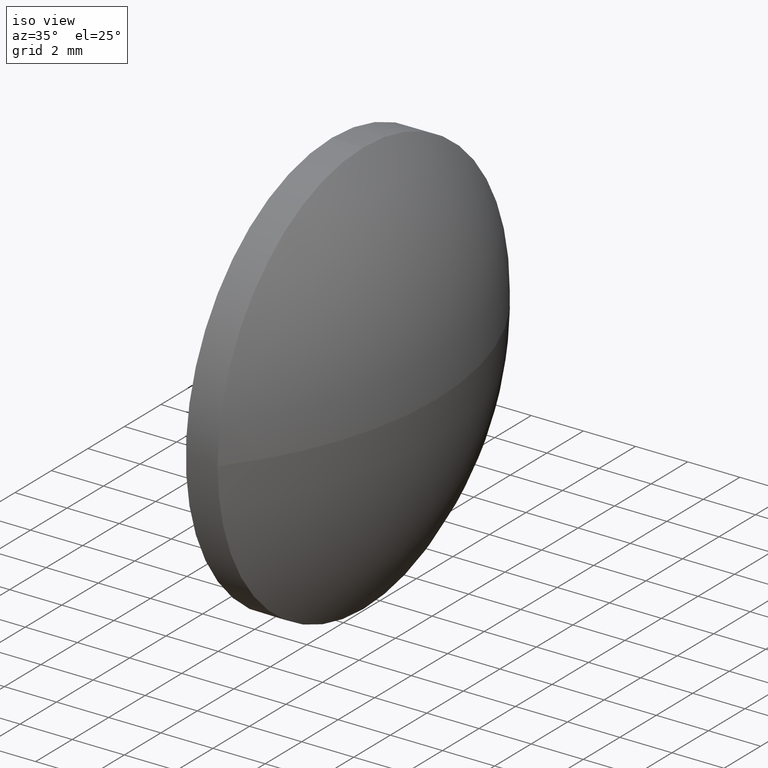
[diagram: clean part render]
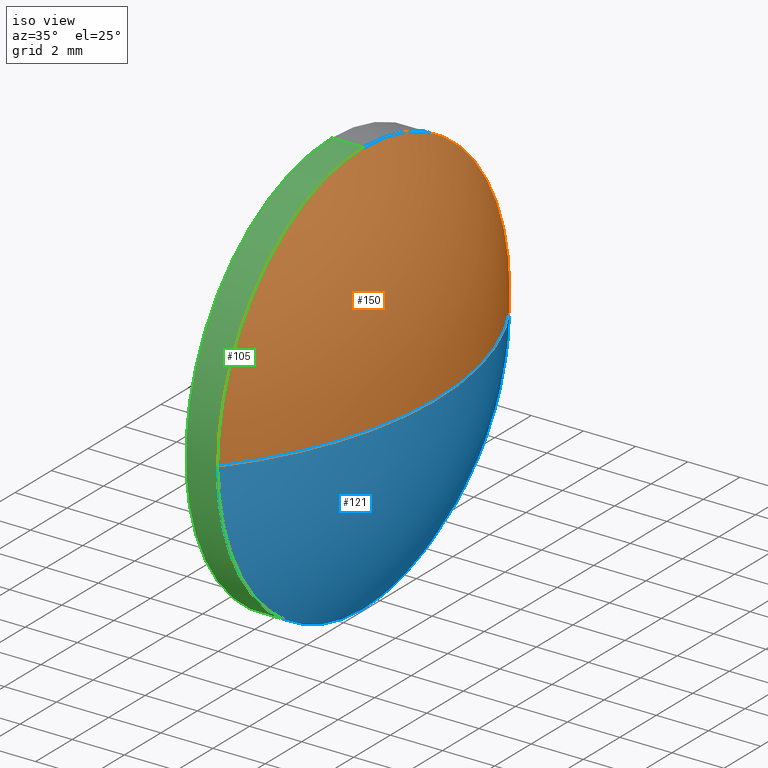
[diagram: same view with three faces highlighted in distinct colors, each labeled with its STEP entity id]
A machine part, iso view with three faces highlighted in distinct colors.
Their STEP definitions:

[orange] entity #150 — the highlighted spherical surface has radius 12.9008 mm.
#15 = CARTESIAN_POINT ( 'NONE',  ( 479.1329406845434800, -39.39311848752242900, 0.0000000000000000000 ) ) ;
#19 = SPHERICAL_SURFACE ( 'NONE', #51, 12.90079136690647800 ) ;
#22 = CIRCLE ( 'NONE', #27, 12.90079136690647800 ) ;
#23 = EDGE_CURVE ( 'NONE', #125, #62, #137, .T. ) ;
#24 = AXIS2_PLACEMENT_3D ( 'NONE', #66, #81, #181 ) ;
#27 = AXIS2_PLACEMENT_3D ( 'NONE', #112, #138, #45 ) ;
#30 = CARTESIAN_POINT ( 'NONE',  ( 476.3529406845434600, -31.39311848752240800, 0.0000000000000000000 ) ) ;
#40 = ORIENTED_EDGE ( 'NONE', *, *, #77, .F. ) ;
#45 = DIRECTION ( 'NONE',  ( 0.0000000000000000000, 1.000000000000000000, 1.224646799147353200E-016 ) ) ;
#47 = CARTESIAN_POINT ( 'NONE',  ( 476.3529406845434600, -39.39311848752240100, 0.0000000000000000000 ) ) ;
#51 = AXIS2_PLACEMENT_3D ( 'NONE', #82, #182, #98 ) ;
#53 = CIRCLE ( 'NONE', #151, 8.000000000000000000 ) ;
#62 = VERTEX_POINT ( 'NONE', #144 ) ;
#66 = CARTESIAN_POINT ( 'NONE',  ( 466.2321493176370400, -39.39311848752242900, 0.0000000000000000000 ) ) ;
#71 = VERTEX_POINT ( 'NONE', #30 ) ;
#73 = DIRECTION ( 'NONE',  ( 0.0000000000000000000, 0.0000000000000000000, 1.000000000000000000 ) ) ;
#77 = EDGE_CURVE ( 'NONE', #109, #125, #22, .T. ) ;
#81 = DIRECTION ( 'NONE',  ( -0.0000000000000000000, 0.0000000000000000000, 1.000000000000000000 ) ) ;
#82 = CARTESIAN_POINT ( 'NONE',  ( 466.2321493176370400, -39.39311848752242900, 0.0000000000000000000 ) ) ;
#90 = CIRCLE ( 'NONE', #24, 12.90079136690647100 ) ;
#97 = CARTESIAN_POINT ( 'NONE',  ( 476.3529406845434600, -39.39311848752240100, 0.0000000000000000000 ) ) ;
#98 = DIRECTION ( 'NONE',  ( 0.0000000000000000000, 1.000000000000000000, 0.0000000000000000000 ) ) ;
#107 = DIRECTION ( 'NONE',  ( 0.0000000000000000000, 0.0000000000000000000, 1.000000000000000000 ) ) ;
#109 = VERTEX_POINT ( 'NONE', #15 ) ;
#112 = CARTESIAN_POINT ( 'NONE',  ( 466.2321493176370400, -39.39311848752242900, 0.0000000000000000000 ) ) ;
#125 = VERTEX_POINT ( 'NONE', #140 ) ;
#126 = FACE_OUTER_BOUND ( 'NONE', #165, .T. ) ;
#134 = EDGE_CURVE ( 'NONE', #62, #71, #53, .T. ) ;
#137 = CIRCLE ( 'NONE', #160, 8.000000000000000000 ) ;
#138 = DIRECTION ( 'NONE',  ( 0.0000000000000000000, 1.224646799147353200E-016, -1.000000000000000000 ) ) ;
#140 = CARTESIAN_POINT ( 'NONE',  ( 476.3529406845434600, -47.39311848752242200, -9.797174393178821700E-016 ) ) ;
#144 = CARTESIAN_POINT ( 'NONE',  ( 476.3529406845434600, -39.39311848752240100, 8.000000000000000000 ) ) ;
#145 = DIRECTION ( 'NONE',  ( -1.000000000000000000, -0.0000000000000000000, -0.0000000000000000000 ) ) ;
#147 = ORIENTED_EDGE ( 'NONE', *, *, #23, .F. ) ;
#150 = ADVANCED_FACE ( 'NONE', ( #126 ), #19, .T. ) ;
#151 = AXIS2_PLACEMENT_3D ( 'NONE', #97, #172, #107 ) ;
#157 = ORIENTED_EDGE ( 'NONE', *, *, #177, .T. ) ;
#160 = AXIS2_PLACEMENT_3D ( 'NONE', #47, #145, #73 ) ;
#162 = ORIENTED_EDGE ( 'NONE', *, *, #134, .F. ) ;
#165 = EDGE_LOOP ( 'NONE', ( #40, #157, #162, #147 ) ) ;
#172 = DIRECTION ( 'NONE',  ( -1.000000000000000000, -0.0000000000000000000, -0.0000000000000000000 ) ) ;
#177 = EDGE_CURVE ( 'NONE', #109, #71, #90, .T. ) ;
#181 = DIRECTION ( 'NONE',  ( 1.000000000000000000, 0.0000000000000000000, 0.0000000000000000000 ) ) ;
#182 = DIRECTION ( 'NONE',  ( -0.0000000000000000000, 0.0000000000000000000, -1.000000000000000000 ) ) ;

[blue] entity #121 — the highlighted spherical surface has radius 12.9008 mm.
#6 = VERTEX_POINT ( 'NONE', #114 ) ;
#14 = ORIENTED_EDGE ( 'NONE', *, *, #183, .F. ) ;
#15 = CARTESIAN_POINT ( 'NONE',  ( 479.1329406845434800, -39.39311848752242900, 0.0000000000000000000 ) ) ;
#20 = EDGE_CURVE ( 'NONE', #6, #125, #148, .T. ) ;
#22 = CIRCLE ( 'NONE', #27, 12.90079136690647800 ) ;
#24 = AXIS2_PLACEMENT_3D ( 'NONE', #66, #81, #181 ) ;
#27 = AXIS2_PLACEMENT_3D ( 'NONE', #112, #138, #45 ) ;
#30 = CARTESIAN_POINT ( 'NONE',  ( 476.3529406845434600, -31.39311848752240800, 0.0000000000000000000 ) ) ;
#36 = DIRECTION ( 'NONE',  ( 0.0000000000000000000, 0.0000000000000000000, 1.000000000000000000 ) ) ;
#37 = DIRECTION ( 'NONE',  ( -1.000000000000000000, -0.0000000000000000000, -0.0000000000000000000 ) ) ;
#39 = CARTESIAN_POINT ( 'NONE',  ( 466.2321493176370400, -39.39311848752242900, 0.0000000000000000000 ) ) ;
#41 = SPHERICAL_SURFACE ( 'NONE', #128, 12.90079136690647800 ) ;
#45 = DIRECTION ( 'NONE',  ( 0.0000000000000000000, 1.000000000000000000, 1.224646799147353200E-016 ) ) ;
#58 = AXIS2_PLACEMENT_3D ( 'NONE', #115, #100, #175 ) ;
#66 = CARTESIAN_POINT ( 'NONE',  ( 466.2321493176370400, -39.39311848752242900, 0.0000000000000000000 ) ) ;
#71 = VERTEX_POINT ( 'NONE', #30 ) ;
#77 = EDGE_CURVE ( 'NONE', #109, #125, #22, .T. ) ;
#81 = DIRECTION ( 'NONE',  ( -0.0000000000000000000, 0.0000000000000000000, 1.000000000000000000 ) ) ;
#83 = ORIENTED_EDGE ( 'NONE', *, *, #177, .F. ) ;
#86 = DIRECTION ( 'NONE',  ( -0.0000000000000000000, 0.0000000000000000000, -1.000000000000000000 ) ) ;
#90 = CIRCLE ( 'NONE', #24, 12.90079136690647100 ) ;
#100 = DIRECTION ( 'NONE',  ( -1.000000000000000000, -0.0000000000000000000, -0.0000000000000000000 ) ) ;
#108 = DIRECTION ( 'NONE',  ( 0.0000000000000000000, 1.000000000000000000, 0.0000000000000000000 ) ) ;
#109 = VERTEX_POINT ( 'NONE', #15 ) ;
#112 = CARTESIAN_POINT ( 'NONE',  ( 466.2321493176370400, -39.39311848752242900, 0.0000000000000000000 ) ) ;
#114 = CARTESIAN_POINT ( 'NONE',  ( 476.3529406845434600, -39.39311848752240100, -8.000000000000000000 ) ) ;
#115 = CARTESIAN_POINT ( 'NONE',  ( 476.3529406845434600, -39.39311848752240100, 0.0000000000000000000 ) ) ;
#116 = EDGE_LOOP ( 'NONE', ( #83, #132, #179, #14 ) ) ;
#120 = CIRCLE ( 'NONE', #164, 8.000000000000000000 ) ;
#121 = ADVANCED_FACE ( 'NONE', ( #155 ), #41, .T. ) ;
#125 = VERTEX_POINT ( 'NONE', #140 ) ;
#128 = AXIS2_PLACEMENT_3D ( 'NONE', #39, #86, #108 ) ;
#132 = ORIENTED_EDGE ( 'NONE', *, *, #77, .T. ) ;
#138 = DIRECTION ( 'NONE',  ( 0.0000000000000000000, 1.224646799147353200E-016, -1.000000000000000000 ) ) ;
#140 = CARTESIAN_POINT ( 'NONE',  ( 476.3529406845434600, -47.39311848752242200, -9.797174393178821700E-016 ) ) ;
#148 = CIRCLE ( 'NONE', #58, 8.000000000000000000 ) ;
#155 = FACE_OUTER_BOUND ( 'NONE', #116, .T. ) ;
#164 = AXIS2_PLACEMENT_3D ( 'NONE', #173, #37, #36 ) ;
#173 = CARTESIAN_POINT ( 'NONE',  ( 476.3529406845434600, -39.39311848752240100, 0.0000000000000000000 ) ) ;
#175 = DIRECTION ( 'NONE',  ( 0.0000000000000000000, 0.0000000000000000000, 1.000000000000000000 ) ) ;
#177 = EDGE_CURVE ( 'NONE', #109, #71, #90, .T. ) ;
#179 = ORIENTED_EDGE ( 'NONE', *, *, #20, .F. ) ;
#181 = DIRECTION ( 'NONE',  ( 1.000000000000000000, 0.0000000000000000000, 0.0000000000000000000 ) ) ;
#183 = EDGE_CURVE ( 'NONE', #71, #6, #120, .T. ) ;

[green] entity #105 — the highlighted cylindrical surface (partial cylindrical patch) has radius 8 mm, axis along (-1, -0, -0).
#4 = CARTESIAN_POINT ( 'NONE',  ( 473.4849682115519700, -39.39311848752240100, -8.000000000000000000 ) ) ;
#6 = VERTEX_POINT ( 'NONE', #114 ) ;
#7 = LINE ( 'NONE', #4, #91 ) ;
#9 = ORIENTED_EDGE ( 'NONE', *, *, #20, .T. ) ;
#12 = EDGE_CURVE ( 'NONE', #6, #118, #7, .T. ) ;
#18 = DIRECTION ( 'NONE',  ( -1.000000000000000000, -0.0000000000000000000, -0.0000000000000000000 ) ) ;
#20 = EDGE_CURVE ( 'NONE', #6, #125, #148, .T. ) ;
#23 = EDGE_CURVE ( 'NONE', #125, #62, #137, .T. ) ;
#31 = EDGE_CURVE ( 'NONE', #62, #146, #170, .T. ) ;
#47 = CARTESIAN_POINT ( 'NONE',  ( 476.3529406845434600, -39.39311848752240100, 0.0000000000000000000 ) ) ;
#48 = EDGE_LOOP ( 'NONE', ( #104, #9, #50, #52, #119 ) ) ;
#50 = ORIENTED_EDGE ( 'NONE', *, *, #23, .T. ) ;
#52 = ORIENTED_EDGE ( 'NONE', *, *, #31, .T. ) ;
#56 = DIRECTION ( 'NONE',  ( -1.000000000000000000, -0.0000000000000000000, -0.0000000000000000000 ) ) ;
#58 = AXIS2_PLACEMENT_3D ( 'NONE', #115, #100, #175 ) ;
#60 = FACE_OUTER_BOUND ( 'NONE', #48, .T. ) ;
#62 = VERTEX_POINT ( 'NONE', #144 ) ;
#67 = DIRECTION ( 'NONE',  ( -1.000000000000000000, -0.0000000000000000000, -0.0000000000000000000 ) ) ;
#73 = DIRECTION ( 'NONE',  ( 0.0000000000000000000, 0.0000000000000000000, 1.000000000000000000 ) ) ;
#84 = VECTOR ( 'NONE', #18, 1000.000000000000000 ) ;
#85 = CARTESIAN_POINT ( 'NONE',  ( 475.1329406845434300, -39.39311848752240100, 0.0000000000000000000 ) ) ;
#89 = CARTESIAN_POINT ( 'NONE',  ( 473.4849682115519700, -39.39311848752240100, 8.000000000000000000 ) ) ;
#91 = VECTOR ( 'NONE', #161, 1000.000000000000000 ) ;
#95 = CYLINDRICAL_SURFACE ( 'NONE', #117, 8.000000000000000000 ) ;
#100 = DIRECTION ( 'NONE',  ( -1.000000000000000000, -0.0000000000000000000, -0.0000000000000000000 ) ) ;
#104 = ORIENTED_EDGE ( 'NONE', *, *, #12, .F. ) ;
#105 = ADVANCED_FACE ( 'NONE', ( #60 ), #95, .T. ) ;
#106 = CARTESIAN_POINT ( 'NONE',  ( 475.1329406845434300, -39.39311848752240100, -8.000000000000000000 ) ) ;
#114 = CARTESIAN_POINT ( 'NONE',  ( 476.3529406845434600, -39.39311848752240100, -8.000000000000000000 ) ) ;
#115 = CARTESIAN_POINT ( 'NONE',  ( 476.3529406845434600, -39.39311848752240100, 0.0000000000000000000 ) ) ;
#117 = AXIS2_PLACEMENT_3D ( 'NONE', #171, #67, #124 ) ;
#118 = VERTEX_POINT ( 'NONE', #106 ) ;
#119 = ORIENTED_EDGE ( 'NONE', *, *, #176, .F. ) ;
#124 = DIRECTION ( 'NONE',  ( 0.0000000000000000000, 0.0000000000000000000, 1.000000000000000000 ) ) ;
#125 = VERTEX_POINT ( 'NONE', #140 ) ;
#137 = CIRCLE ( 'NONE', #160, 8.000000000000000000 ) ;
#140 = CARTESIAN_POINT ( 'NONE',  ( 476.3529406845434600, -47.39311848752242200, -9.797174393178821700E-016 ) ) ;
#143 = AXIS2_PLACEMENT_3D ( 'NONE', #85, #56, #156 ) ;
#144 = CARTESIAN_POINT ( 'NONE',  ( 476.3529406845434600, -39.39311848752240100, 8.000000000000000000 ) ) ;
#145 = DIRECTION ( 'NONE',  ( -1.000000000000000000, -0.0000000000000000000, -0.0000000000000000000 ) ) ;
#146 = VERTEX_POINT ( 'NONE', #168 ) ;
#148 = CIRCLE ( 'NONE', #58, 8.000000000000000000 ) ;
#156 = DIRECTION ( 'NONE',  ( 0.0000000000000000000, 0.0000000000000000000, 1.000000000000000000 ) ) ;
#160 = AXIS2_PLACEMENT_3D ( 'NONE', #47, #145, #73 ) ;
#161 = DIRECTION ( 'NONE',  ( -1.000000000000000000, -0.0000000000000000000, -0.0000000000000000000 ) ) ;
#168 = CARTESIAN_POINT ( 'NONE',  ( 475.1329406845434300, -39.39311848752240100, 8.000000000000000000 ) ) ;
#170 = LINE ( 'NONE', #89, #84 ) ;
#171 = CARTESIAN_POINT ( 'NONE',  ( 473.4849682115519700, -39.39311848752240100, 0.0000000000000000000 ) ) ;
#175 = DIRECTION ( 'NONE',  ( 0.0000000000000000000, 0.0000000000000000000, 1.000000000000000000 ) ) ;
#176 = EDGE_CURVE ( 'NONE', #118, #146, #184, .T. ) ;
#184 = CIRCLE ( 'NONE', #143, 8.000000000000000000 ) ;